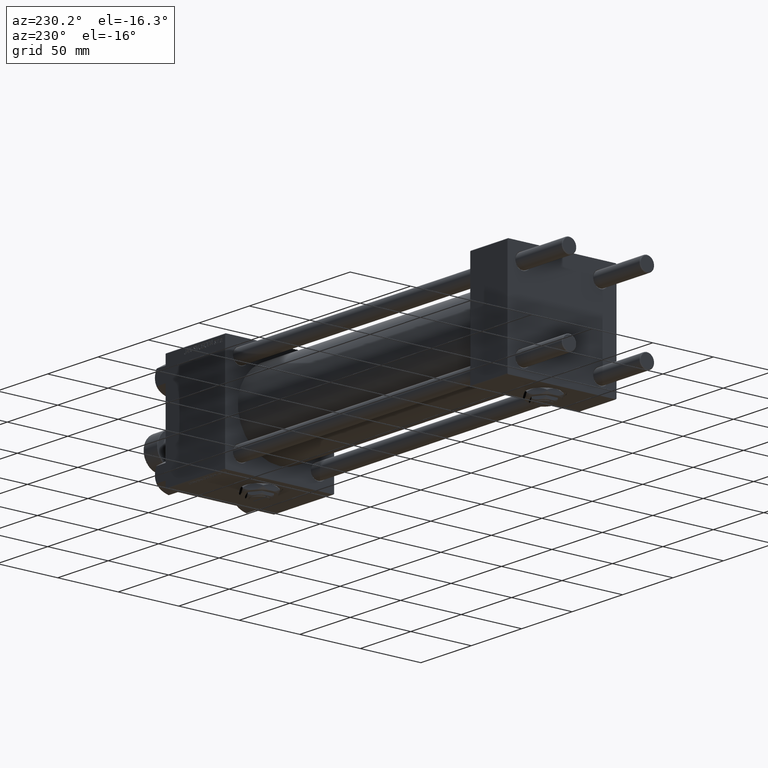
[diagram: clean part render]
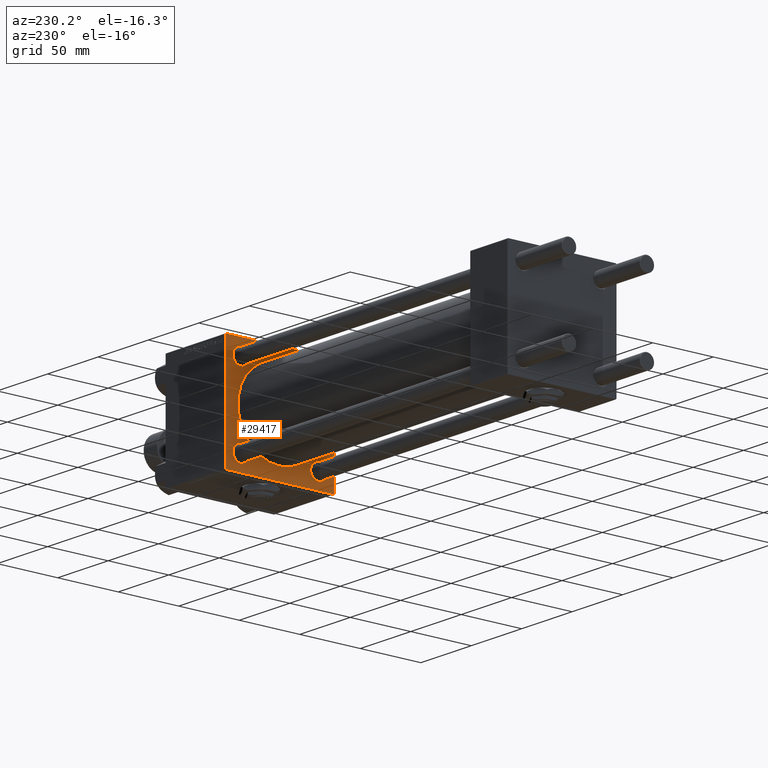
[diagram: same view with one face highlighted and labeled with its STEP entity id]
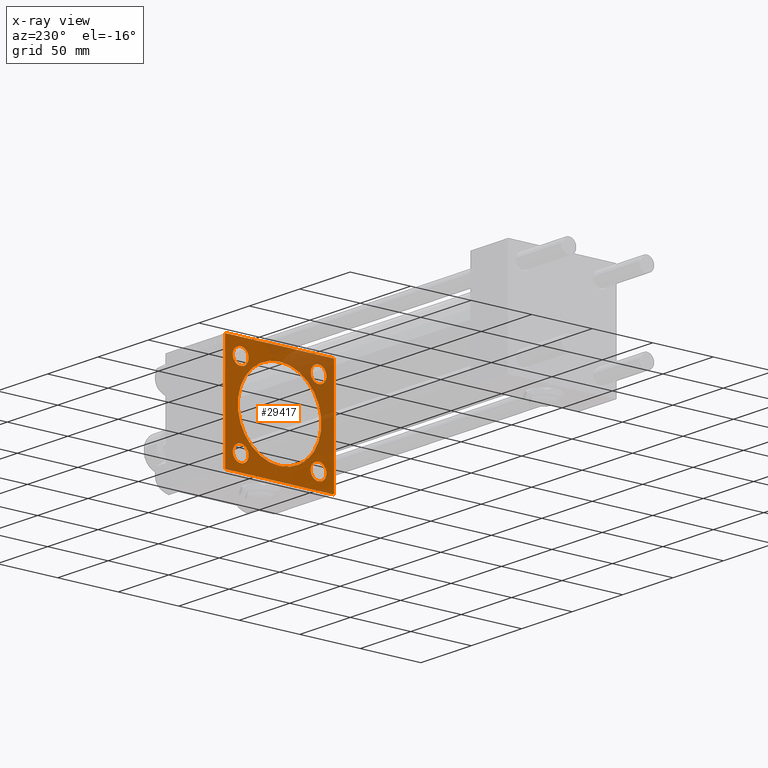
[diagram: x-ray of the same camera — body ghosted, the highlighted face saturated]
A machine part, auxiliary view. The second image highlights one B-rep face of the part: STEP entity #29417.
The next image is the same camera in x-ray: the body ghosted, the highlighted face saturated — about 31% of this face is hidden behind the body in this view.
In plain terms, the highlighted planar face has unit normal (-1, 0, 0).
Its self-contained STEP definition (entity closure, byte-faithful):
#444 = VERTEX_POINT ( 'NONE', #36857 ) ;
#520 = EDGE_LOOP ( 'NONE', ( #10681, #49422 ) ) ;
#792 = DIRECTION ( 'NONE',  ( 0.000000000000000000, 0.000000000000000000, 1.000000000000000000 ) ) ;
#1017 = AXIS2_PLACEMENT_3D ( 'NONE', #50045, #41843, #1917 ) ;
#1144 = DIRECTION ( 'NONE',  ( 0.000000000000000000, 0.000000000000000000, 1.000000000000000000 ) ) ;
#1437 = DIRECTION ( 'NONE',  ( 1.000000000000000000, 0.000000000000000000, 0.000000000000000000 ) ) ;
#1463 = LINE ( 'NONE', #21556, #49822 ) ;
#1529 = DIRECTION ( 'NONE',  ( 0.000000000000000000, 0.000000000000000000, -1.000000000000000000 ) ) ;
#1645 = ORIENTED_EDGE ( 'NONE', *, *, #35266, .T. ) ;
#1917 = DIRECTION ( 'NONE',  ( 0.000000000000000000, 0.000000000000000000, 1.000000000000000000 ) ) ;
#2347 = DIRECTION ( 'NONE',  ( -1.000000000000000000, 0.000000000000000000, -0.000000000000000000 ) ) ;
#2586 = ORIENTED_EDGE ( 'NONE', *, *, #30620, .T. ) ;
#3374 = AXIS2_PLACEMENT_3D ( 'NONE', #8850, #1437, #13327 ) ;
#3552 = VECTOR ( 'NONE', #7629, 1000.000000000000114 ) ;
#3591 = EDGE_CURVE ( 'NONE', #8045, #46532, #27734, .T. ) ;
#3784 = AXIS2_PLACEMENT_3D ( 'NONE', #31008, #39195, #10651 ) ;
#3828 = DIRECTION ( 'NONE',  ( 1.000000000000000000, 0.000000000000000000, 0.000000000000000000 ) ) ;
#4153 = CIRCLE ( 'NONE', #46375, 6.499999999999950262 ) ;
#4325 = VECTOR ( 'NONE', #1529, 1000.000000000000000 ) ;
#4344 = AXIS2_PLACEMENT_3D ( 'NONE', #4702, #41434, #48870 ) ;
#4702 = CARTESIAN_POINT ( 'NONE',  ( 279.9999999999999432, 0.000000000000000000, 0.000000000000000000 ) ) ;
#4971 = CARTESIAN_POINT ( 'NONE',  ( 279.9999999999999432, -32.14999999999997726, -32.15000000000001279 ) ) ;
#5368 = VERTEX_POINT ( 'NONE', #37037 ) ;
#5469 = DIRECTION ( 'NONE',  ( 0.000000000000000000, 0.000000000000000000, 1.000000000000000000 ) ) ;
#5504 = ORIENTED_EDGE ( 'NONE', *, *, #44020, .T. ) ;
#5518 = DIRECTION ( 'NONE',  ( -0.000000000000000000, 0.000000000000000000, 1.000000000000000000 ) ) ;
#5633 = VERTEX_POINT ( 'NONE', #35413 ) ;
#6118 = CARTESIAN_POINT ( 'NONE',  ( 279.9999999999999432, -32.14999999999997726, 38.64999999999996305 ) ) ;
#6576 = CARTESIAN_POINT ( 'NONE',  ( 279.9999999999999432, 0.000000000000000000, 0.000000000000000000 ) ) ;
#7629 = DIRECTION ( 'NONE',  ( -0.000000000000000000, 0.7071067811865474617, 0.7071067811865474617 ) ) ;
#8045 = VERTEX_POINT ( 'NONE', #39603 ) ;
#8434 = CIRCLE ( 'NONE', #3374, 6.499999999999950262 ) ;
#8850 = CARTESIAN_POINT ( 'NONE',  ( 279.9999999999999432, 32.14999999999999147, 32.15000000000000568 ) ) ;
#9060 = AXIS2_PLACEMENT_3D ( 'NONE', #10869, #26994, #792 ) ;
#9178 = CARTESIAN_POINT ( 'NONE',  ( 279.9999999999999432, 32.14999999999999147, -38.64999999999989910 ) ) ;
#9179 = DIRECTION ( 'NONE',  ( 1.000000000000000000, 0.000000000000000000, 0.000000000000000000 ) ) ;
#10252 = ORIENTED_EDGE ( 'NONE', *, *, #50148, .T. ) ;
#10390 = EDGE_CURVE ( 'NONE', #22421, #8045, #35761, .T. ) ;
#10547 = PLANE ( 'NONE',  #10871 ) ;
#10651 = DIRECTION ( 'NONE',  ( 0.000000000000000000, 0.000000000000000000, -1.000000000000000000 ) ) ;
#10681 = ORIENTED_EDGE ( 'NONE', *, *, #19664, .T. ) ;
#10869 = CARTESIAN_POINT ( 'NONE',  ( 279.9999999999999432, 32.14999999999999147, -32.15000000000000568 ) ) ;
#10871 = AXIS2_PLACEMENT_3D ( 'NONE', #6576, #2347, #5518 ) ;
#11063 = CIRCLE ( 'NONE', #37200, 6.499999999999950262 ) ;
#11177 = AXIS2_PLACEMENT_3D ( 'NONE', #29678, #38395, #1144 ) ;
#11201 = DIRECTION ( 'NONE',  ( 0.000000000000000000, 0.7071067811865474617, -0.7071067811865474617 ) ) ;
#13327 = DIRECTION ( 'NONE',  ( 0.000000000000000000, 0.000000000000000000, 1.000000000000000000 ) ) ;
#13883 = VECTOR ( 'NONE', #18645, 999.9999999999998863 ) ;
#14340 = EDGE_CURVE ( 'NONE', #37205, #25793, #15203, .T. ) ;
#14516 = CARTESIAN_POINT ( 'NONE',  ( 279.9999999999999432, -44.75000000000001421, 44.75000000000001421 ) ) ;
#15182 = DIRECTION ( 'NONE',  ( 0.000000000000000000, -1.000000000000000000, -1.541976423090495140E-16 ) ) ;
#15203 = LINE ( 'NONE', #22866, #13883 ) ;
#15815 = CARTESIAN_POINT ( 'NONE',  ( 279.9999999999999432, 45.00000000000001421, -45.00000000000000000 ) ) ;
#16202 = VERTEX_POINT ( 'NONE', #37452 ) ;
#16388 = EDGE_LOOP ( 'NONE', ( #1645, #34358 ) ) ;
#16542 = EDGE_CURVE ( 'NONE', #22421, #5633, #20194, .T. ) ;
#17232 = ORIENTED_EDGE ( 'NONE', *, *, #45606, .T. ) ;
#17332 = DIRECTION ( 'NONE',  ( -0.000000000000000000, -0.7071067811865474617, -0.7071067811865474617 ) ) ;
#17691 = FACE_BOUND ( 'NONE', #16388, .T. ) ;
#17948 = FACE_BOUND ( 'NONE', #35680, .T. ) ;
#18645 = DIRECTION ( 'NONE',  ( 0.000000000000000000, -0.7071067811865525687, 0.7071067811865425767 ) ) ;
#19370 = VERTEX_POINT ( 'NONE', #37939 ) ;
#19664 = EDGE_CURVE ( 'NONE', #24316, #21342, #19837, .T. ) ;
#19837 = CIRCLE ( 'NONE', #3784, 34.49999999999999289 ) ;
#20192 = ORIENTED_EDGE ( 'NONE', *, *, #44541, .F. ) ;
#20194 = LINE ( 'NONE', #32082, #35849 ) ;
#20485 = DIRECTION ( 'NONE',  ( 0.000000000000000000, 0.000000000000000000, 1.000000000000000000 ) ) ;
#21176 = ORIENTED_EDGE ( 'NONE', *, *, #50823, .T. ) ;
#21342 = VERTEX_POINT ( 'NONE', #21950 ) ;
#21556 = CARTESIAN_POINT ( 'NONE',  ( 279.9999999999999432, 44.75000000000000000, -44.75000000000000000 ) ) ;
#21949 = VERTEX_POINT ( 'NONE', #28340 ) ;
#21950 = CARTESIAN_POINT ( 'NONE',  ( 279.9999999999999432, 4.225031457058367344E-15, -34.49999999999999289 ) ) ;
#22421 = VERTEX_POINT ( 'NONE', #31924 ) ;
#22861 = LINE ( 'NONE', #26810, #34556 ) ;
#22866 = CARTESIAN_POINT ( 'NONE',  ( 279.9999999999999432, -44.74999999999968736, -44.75000000000031264 ) ) ;
#22984 = CIRCLE ( 'NONE', #1017, 6.499999999999950262 ) ;
#24316 = VERTEX_POINT ( 'NONE', #34666 ) ;
#25051 = CARTESIAN_POINT ( 'NONE',  ( 279.9999999999999432, 32.14999999999999147, 32.15000000000000568 ) ) ;
#25320 = CARTESIAN_POINT ( 'NONE',  ( 279.9999999999999432, 45.00000000000001421, 45.00000000000000000 ) ) ;
#25649 = ORIENTED_EDGE ( 'NONE', *, *, #10390, .T. ) ;
#25793 = VERTEX_POINT ( 'NONE', #38090 ) ;
#26026 = VECTOR ( 'NONE', #47558, 1000.000000000000000 ) ;
#26659 = FACE_OUTER_BOUND ( 'NONE', #32318, .T. ) ;
#26810 = CARTESIAN_POINT ( 'NONE',  ( 279.9999999999999432, -45.00000000000000000, 44.99999999999998579 ) ) ;
#26815 = CARTESIAN_POINT ( 'NONE',  ( 279.9999999999999432, 44.50000000000001421, -45.00000000000000000 ) ) ;
#26994 = DIRECTION ( 'NONE',  ( 1.000000000000000000, 0.000000000000000000, 0.000000000000000000 ) ) ;
#27712 = LINE ( 'NONE', #14516, #3552 ) ;
#27734 = LINE ( 'NONE', #25320, #4325 ) ;
#28194 = ORIENTED_EDGE ( 'NONE', *, *, #50150, .T. ) ;
#28340 = CARTESIAN_POINT ( 'NONE',  ( 279.9999999999999432, 32.14999999999999147, 25.65000000000005542 ) ) ;
#28580 = EDGE_CURVE ( 'NONE', #33575, #37205, #51797, .T. ) ;
#29417 = ADVANCED_FACE ( 'NONE', ( #30638, #30905, #17691, #17948, #33803, #26659 ), #10547, .T. ) ;
#29678 = CARTESIAN_POINT ( 'NONE',  ( 279.9999999999999432, -32.14999999999997726, -32.15000000000001279 ) ) ;
#30620 = EDGE_CURVE ( 'NONE', #21949, #19370, #4153, .T. ) ;
#30638 = FACE_BOUND ( 'NONE', #35751, .T. ) ;
#30905 = FACE_BOUND ( 'NONE', #34460, .T. ) ;
#31008 = CARTESIAN_POINT ( 'NONE',  ( 279.9999999999999432, 0.000000000000000000, 0.000000000000000000 ) ) ;
#31924 = CARTESIAN_POINT ( 'NONE',  ( 279.9999999999999432, 44.49999999999995737, 45.00000000000000000 ) ) ;
#32044 = CIRCLE ( 'NONE', #32861, 6.499999999999895195 ) ;
#32082 = CARTESIAN_POINT ( 'NONE',  ( 279.9999999999999432, 45.00000000000001421, 45.00000000000000000 ) ) ;
#32248 = ORIENTED_EDGE ( 'NONE', *, *, #16542, .F. ) ;
#32318 = EDGE_LOOP ( 'NONE', ( #48993, #32427, #20192, #21176, #32248, #25649, #43992, #17232 ) ) ;
#32427 = ORIENTED_EDGE ( 'NONE', *, *, #14340, .T. ) ;
#32666 = CARTESIAN_POINT ( 'NONE',  ( 279.9999999999999432, 32.14999999999999147, -32.15000000000000568 ) ) ;
#32861 = AXIS2_PLACEMENT_3D ( 'NONE', #4971, #37215, #33241 ) ;
#33181 = DIRECTION ( 'NONE',  ( 1.000000000000000000, 0.000000000000000000, 0.000000000000000000 ) ) ;
#33241 = DIRECTION ( 'NONE',  ( 0.000000000000000000, 0.000000000000000000, 1.000000000000000000 ) ) ;
#33575 = VERTEX_POINT ( 'NONE', #26815 ) ;
#33700 = VERTEX_POINT ( 'NONE', #6118 ) ;
#33803 = FACE_BOUND ( 'NONE', #520, .T. ) ;
#34358 = ORIENTED_EDGE ( 'NONE', *, *, #45710, .T. ) ;
#34460 = EDGE_LOOP ( 'NONE', ( #37410, #2586 ) ) ;
#34556 = VECTOR ( 'NONE', #51432, 1000.000000000000000 ) ;
#34666 = CARTESIAN_POINT ( 'NONE',  ( 279.9999999999999432, 0.000000000000000000, 34.49999999999999289 ) ) ;
#35174 = CARTESIAN_POINT ( 'NONE',  ( 279.9999999999999432, -45.00000000000000000, 44.50000000000004263 ) ) ;
#35224 = VERTEX_POINT ( 'NONE', #35174 ) ;
#35266 = EDGE_CURVE ( 'NONE', #39308, #48664, #52157, .T. ) ;
#35413 = CARTESIAN_POINT ( 'NONE',  ( 279.9999999999999432, -44.50000000000002842, 44.99999999999998579 ) ) ;
#35680 = EDGE_LOOP ( 'NONE', ( #10252, #5504 ) ) ;
#35751 = EDGE_LOOP ( 'NONE', ( #28194, #48331 ) ) ;
#35761 = LINE ( 'NONE', #39478, #50870 ) ;
#35849 = VECTOR ( 'NONE', #15182, 1000.000000000000000 ) ;
#36857 = CARTESIAN_POINT ( 'NONE',  ( 279.9999999999999432, -32.14999999999997726, 25.65000000000006253 ) ) ;
#37037 = CARTESIAN_POINT ( 'NONE',  ( 279.9999999999999432, -32.14999999999997726, -25.65000000000011582 ) ) ;
#37158 = CARTESIAN_POINT ( 'NONE',  ( 279.9999999999999432, 45.00000000000001421, -44.49999999999997158 ) ) ;
#37200 = AXIS2_PLACEMENT_3D ( 'NONE', #44027, #3828, #20485 ) ;
#37205 = VERTEX_POINT ( 'NONE', #39016 ) ;
#37215 = DIRECTION ( 'NONE',  ( 1.000000000000000000, 0.000000000000000000, 0.000000000000000000 ) ) ;
#37410 = ORIENTED_EDGE ( 'NONE', *, *, #41655, .T. ) ;
#37452 = CARTESIAN_POINT ( 'NONE',  ( 279.9999999999999432, -32.14999999999997726, -38.64999999999990621 ) ) ;
#37939 = CARTESIAN_POINT ( 'NONE',  ( 279.9999999999999432, 32.14999999999999147, 38.64999999999995595 ) ) ;
#38090 = CARTESIAN_POINT ( 'NONE',  ( 279.9999999999999432, -44.99999999999999289, -44.49999999999997158 ) ) ;
#38395 = DIRECTION ( 'NONE',  ( 1.000000000000000000, 0.000000000000000000, 0.000000000000000000 ) ) ;
#39016 = CARTESIAN_POINT ( 'NONE',  ( 279.9999999999999432, -44.49999999999995737, -45.00000000000000000 ) ) ;
#39195 = DIRECTION ( 'NONE',  ( 1.000000000000000000, 0.000000000000000000, 0.000000000000000000 ) ) ;
#39308 = VERTEX_POINT ( 'NONE', #48357 ) ;
#39478 = CARTESIAN_POINT ( 'NONE',  ( 279.9999999999999432, 44.74999999999997158, 44.74999999999997158 ) ) ;
#39603 = CARTESIAN_POINT ( 'NONE',  ( 279.9999999999999432, 45.00000000000001421, 44.49999999999994316 ) ) ;
#41434 = DIRECTION ( 'NONE',  ( 1.000000000000000000, 0.000000000000000000, 0.000000000000000000 ) ) ;
#41655 = EDGE_CURVE ( 'NONE', #19370, #21949, #8434, .T. ) ;
#41843 = DIRECTION ( 'NONE',  ( 1.000000000000000000, 0.000000000000000000, 0.000000000000000000 ) ) ;
#43992 = ORIENTED_EDGE ( 'NONE', *, *, #3591, .T. ) ;
#44020 = EDGE_CURVE ( 'NONE', #16202, #5368, #32044, .T. ) ;
#44027 = CARTESIAN_POINT ( 'NONE',  ( 279.9999999999999432, -32.14999999999997726, 32.15000000000001279 ) ) ;
#44541 = EDGE_CURVE ( 'NONE', #35224, #25793, #22861, .T. ) ;
#44769 = CIRCLE ( 'NONE', #50658, 6.499999999999895195 ) ;
#45606 = EDGE_CURVE ( 'NONE', #46532, #33575, #1463, .T. ) ;
#45710 = EDGE_CURVE ( 'NONE', #48664, #39308, #44769, .T. ) ;
#46375 = AXIS2_PLACEMENT_3D ( 'NONE', #25051, #9179, #5469 ) ;
#46532 = VERTEX_POINT ( 'NONE', #37158 ) ;
#46611 = CIRCLE ( 'NONE', #11177, 6.499999999999895195 ) ;
#47558 = DIRECTION ( 'NONE',  ( 0.000000000000000000, -1.000000000000000000, 0.000000000000000000 ) ) ;
#47903 = EDGE_CURVE ( 'NONE', #444, #33700, #11063, .T. ) ;
#48249 = CIRCLE ( 'NONE', #4344, 34.49999999999999289 ) ;
#48331 = ORIENTED_EDGE ( 'NONE', *, *, #47903, .T. ) ;
#48357 = CARTESIAN_POINT ( 'NONE',  ( 279.9999999999999432, 32.14999999999999147, -25.65000000000010871 ) ) ;
#48560 = EDGE_CURVE ( 'NONE', #21342, #24316, #48249, .T. ) ;
#48664 = VERTEX_POINT ( 'NONE', #9178 ) ;
#48870 = DIRECTION ( 'NONE',  ( 0.000000000000000000, 0.000000000000000000, -1.000000000000000000 ) ) ;
#48993 = ORIENTED_EDGE ( 'NONE', *, *, #28580, .T. ) ;
#49342 = DIRECTION ( 'NONE',  ( 0.000000000000000000, 0.000000000000000000, 1.000000000000000000 ) ) ;
#49422 = ORIENTED_EDGE ( 'NONE', *, *, #48560, .T. ) ;
#49822 = VECTOR ( 'NONE', #17332, 1000.000000000000114 ) ;
#50045 = CARTESIAN_POINT ( 'NONE',  ( 279.9999999999999432, -32.14999999999997726, 32.15000000000001279 ) ) ;
#50148 = EDGE_CURVE ( 'NONE', #5368, #16202, #46611, .T. ) ;
#50150 = EDGE_CURVE ( 'NONE', #33700, #444, #22984, .T. ) ;
#50658 = AXIS2_PLACEMENT_3D ( 'NONE', #32666, #33181, #49342 ) ;
#50823 = EDGE_CURVE ( 'NONE', #35224, #5633, #27712, .T. ) ;
#50870 = VECTOR ( 'NONE', #11201, 1000.000000000000114 ) ;
#51432 = DIRECTION ( 'NONE',  ( 0.000000000000000000, 7.709882115452478166E-17, -1.000000000000000000 ) ) ;
#51797 = LINE ( 'NONE', #15815, #26026 ) ;
#52157 = CIRCLE ( 'NONE', #9060, 6.499999999999895195 ) ;